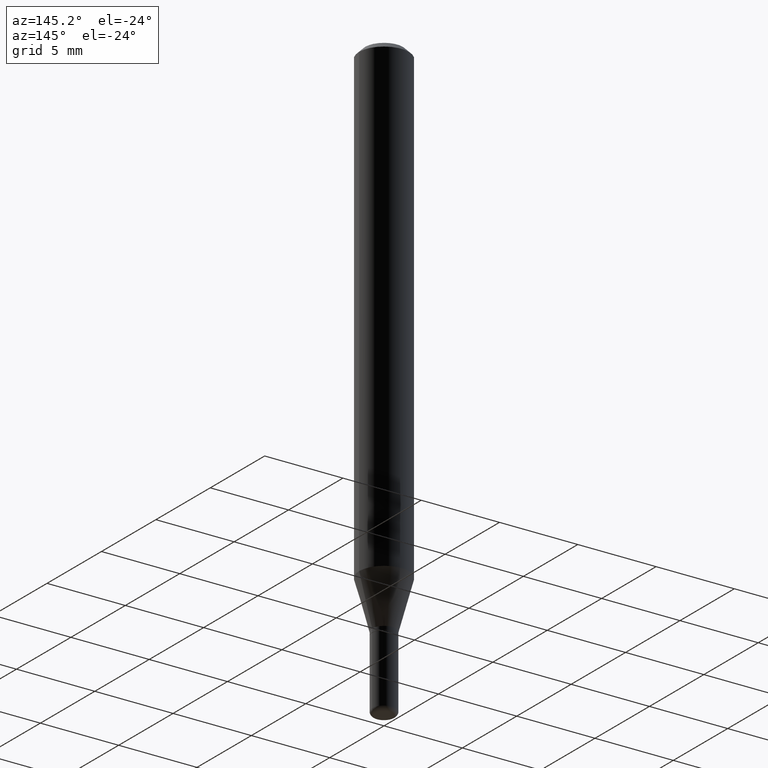
[diagram: clean part render]
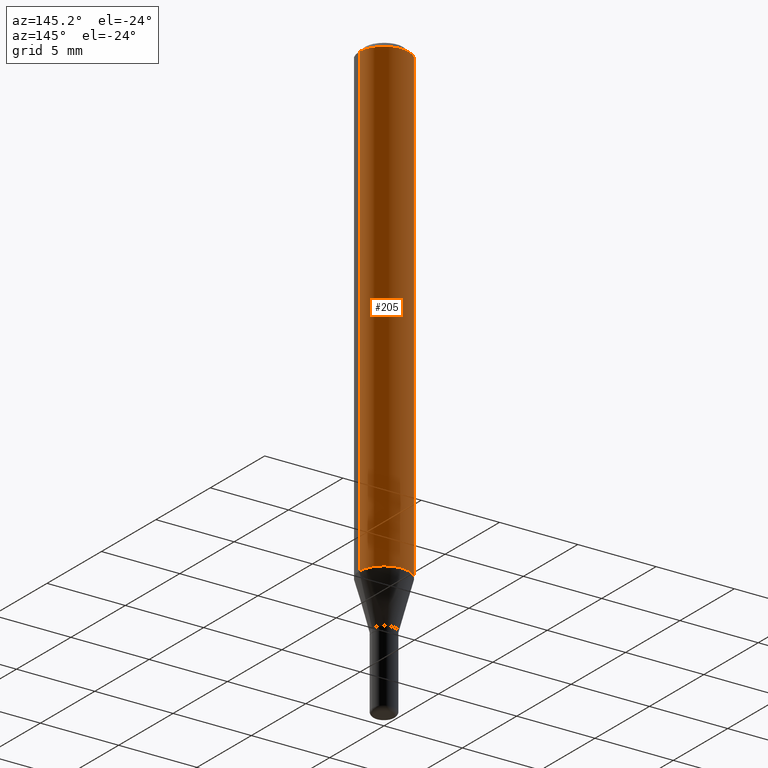
[diagram: same view with one face highlighted and labeled with its STEP entity id]
A machine part, auxiliary view. The second image highlights one B-rep face of the part: STEP entity #205.
In plain terms, the highlighted cylindrical surface (edge-blend (fillet) strip) has radius 1.5875 mm, axis along (-0, 0, 1).
Its self-contained STEP definition (entity closure, byte-faithful):
#34 = ORIENTED_EDGE ( 'NONE', *, *, #351, .F. ) ;
#50 = AXIS2_PLACEMENT_3D ( 'NONE', #64, #232, #258 ) ;
#63 = VERTEX_POINT ( 'NONE', #395 ) ;
#64 = CARTESIAN_POINT ( 'NONE',  ( 0.000000000000000000, 0.000000000000000000, 0.000000000000000000 ) ) ;
#68 = DIRECTION ( 'NONE',  ( 1.000000000000000000, -6.982962677686270655E-15, 0.000000000000000000 ) ) ;
#91 = DIRECTION ( 'NONE',  ( -2.445468806185136877E-29, 3.491481338843145188E-15, 1.000000000000000000 ) ) ;
#118 = ORIENTED_EDGE ( 'NONE', *, *, #412, .F. ) ;
#138 = CARTESIAN_POINT ( 'NONE',  ( 0.06250000000000000000, -4.364351673553916694E-16, 3.047610484872459871E-30 ) ) ;
#147 = DIRECTION ( 'NONE',  ( 1.000000000000000000, -6.982962677686266711E-15, 0.000000000000000000 ) ) ;
#162 = EDGE_LOOP ( 'NONE', ( #346, #381, #34, #118 ) ) ;
#196 = CARTESIAN_POINT ( 'NONE',  ( 2.906949186529777550E-29, -4.150353017001681232E-15, -1.188708348754011546 ) ) ;
#205 = ADVANCED_FACE ( 'NONE', ( #402 ), #413, .T. ) ;
#222 = CIRCLE ( 'NONE', #481, 0.06250000000000000000 ) ;
#226 = VERTEX_POINT ( 'NONE', #330 ) ;
#232 = DIRECTION ( 'NONE',  ( -2.445468806185136597E-29, 3.491481338843145583E-15, 1.000000000000000000 ) ) ;
#247 = EDGE_CURVE ( 'NONE', #63, #340, #292, .T. ) ;
#256 = DIRECTION ( 'NONE',  ( -2.445468806185136877E-29, 3.491481338843145188E-15, 1.000000000000000000 ) ) ;
#258 = DIRECTION ( 'NONE',  ( 1.000000000000000000, -6.982962677686266711E-15, 4.876176775795935793E-29 ) ) ;
#266 = CARTESIAN_POINT ( 'NONE',  ( -0.06250000000000000000, -3.706263807151618616E-15, -1.188708348754011546 ) ) ;
#273 = VECTOR ( 'NONE', #91, 39.37007874015748143 ) ;
#292 = CIRCLE ( 'NONE', #324, 0.06250000000000000000 ) ;
#324 = AXIS2_PLACEMENT_3D ( 'NONE', #196, #460, #68 ) ;
#330 = CARTESIAN_POINT ( 'NONE',  ( 0.06250000000000000000, -4.888073874380378612E-16, -0.01499999999999970281 ) ) ;
#340 = VERTEX_POINT ( 'NONE', #266 ) ;
#346 = ORIENTED_EDGE ( 'NONE', *, *, #247, .T. ) ;
#351 = EDGE_CURVE ( 'NONE', #226, #500, #222, .T. ) ;
#356 = CARTESIAN_POINT ( 'NONE',  ( -0.06250000000000000000, -1.657273408692100948E-15, -0.01499999999999970281 ) ) ;
#381 = ORIENTED_EDGE ( 'NONE', *, *, #396, .T. ) ;
#395 = CARTESIAN_POINT ( 'NONE',  ( 0.06250000000000000000, -4.586788184357073690E-15, -1.188708348754011546 ) ) ;
#396 = EDGE_CURVE ( 'NONE', #340, #500, #456, .T. ) ;
#402 = FACE_OUTER_BOUND ( 'NONE', #162, .T. ) ;
#412 = EDGE_CURVE ( 'NONE', #63, #226, #484, .T. ) ;
#413 = CYLINDRICAL_SURFACE ( 'NONE', #50, 0.06250000000000000000 ) ;
#418 = CARTESIAN_POINT ( 'NONE',  ( 3.668203209277632395E-31, -5.237222008264614861E-17, -0.01499999999999970281 ) ) ;
#448 = VECTOR ( 'NONE', #256, 39.37007874015748143 ) ;
#456 = LINE ( 'NONE', #461, #448 ) ;
#460 = DIRECTION ( 'NONE',  ( -2.445468806185136597E-29, 3.491481338843145583E-15, 1.000000000000000000 ) ) ;
#461 = CARTESIAN_POINT ( 'NONE',  ( -0.06250000000000000000, 4.440892098500626162E-16, -3.074334431409316114E-30 ) ) ;
#481 = AXIS2_PLACEMENT_3D ( 'NONE', #418, #503, #147 ) ;
#484 = LINE ( 'NONE', #138, #273 ) ;
#500 = VERTEX_POINT ( 'NONE', #356 ) ;
#503 = DIRECTION ( 'NONE',  ( -2.445468806185136597E-29, 3.491481338843145583E-15, 1.000000000000000000 ) ) ;